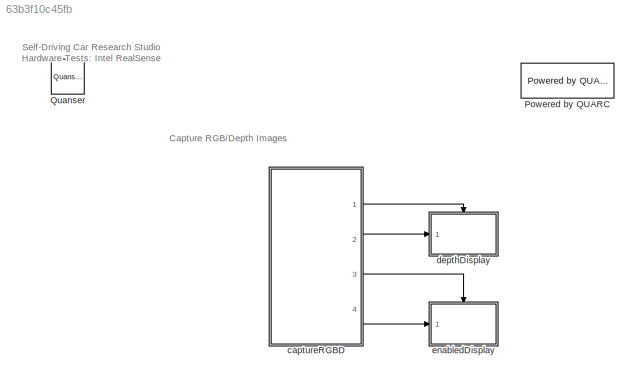
MODEL slx_63b3f10c45fb
KIND model
CONFIG AbsTol = auto
CONFIG EnableMultiTasking = on
CONFIG FixedStep = 1/30
CONFIG MaxStep = auto
CONFIG MinStep = auto
CONFIG RelTol = 1e-3
CONFIG SampleTimeConstraint = Unconstrained
CONFIG Solver = ode2
CONFIG SolverName = ode2
CONFIG StartTime = 0.0
CONFIG StopTime = inf
BLOCK [Reference] Powered by QUARC  REF=quarc_library/Logos/Powered by QUARC
  Ports = []
  SourceBlock = quarc_library/Logos/Powered by QUARC
  SourceProductName = QUARC Targets
  SourceType = Powered by QUARC
BLOCK [Reference] Quanser  REF=quarc_library/Logos/Quanser
  Ports = []
  SourceBlock = quarc_library/Logos/Quanser
  SourceProductName = QUARC Targets
  SourceType = Powered by Quanser
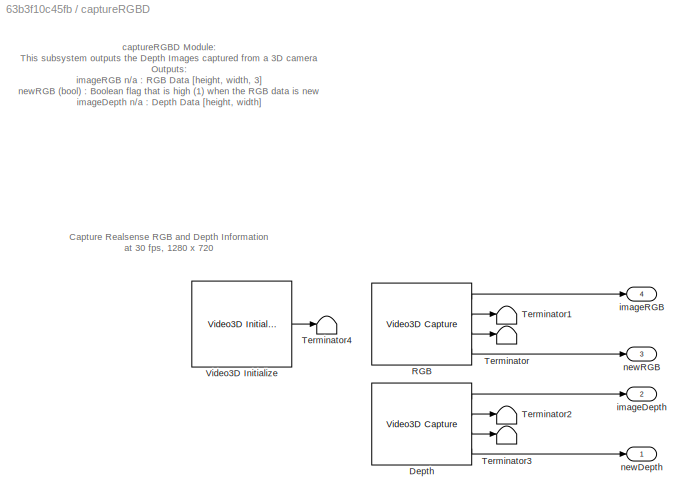
BLOCK [SubSystem] captureRGBD
  Ports = [0, 4]
  RequestExecContextInheritance = off
BLOCK [Reference] captureRGBD/Depth  REF=quarc_library/Multimedia/Video3D Capture
  Ports = [0, 4]
  SourceBlock = quarc_library/Multimedia/Video3D Capture
  SourceProductName = QUARC Targets
  SourceType = Video3D Capture
  UserDataPersistent = on
BLOCK [Reference] captureRGBD/RGB  REF=quarc_library/Multimedia/Video3D Capture
  Ports = [0, 4]
  SourceBlock = quarc_library/Multimedia/Video3D Capture
  SourceProductName = QUARC Targets
  SourceType = Video3D Capture
  UserDataPersistent = on
BLOCK [Terminator] captureRGBD/Terminator
BLOCK [Terminator] captureRGBD/Terminator1
BLOCK [Terminator] captureRGBD/Terminator2
BLOCK [Terminator] captureRGBD/Terminator3
BLOCK [Terminator] captureRGBD/Terminator4
BLOCK [Reference] captureRGBD/Video3D Initialize  REF=quarc_library/Multimedia/Video3D Initialize
  Ports = [0, 1]
  SourceBlock = quarc_library/Multimedia/Video3D Initialize
  SourceProductName = QUARC Targets
  SourceType = Video3D Initialize
BLOCK [Outport] captureRGBD/imageDepth
  IconDisplay = Port number
  Port = 2
BLOCK [Outport] captureRGBD/imageRGB
  IconDisplay = Port number
  Port = 4
BLOCK [Outport] captureRGBD/newDepth
  IconDisplay = Port number
BLOCK [Outport] captureRGBD/newRGB
  IconDisplay = Port number
  Port = 3
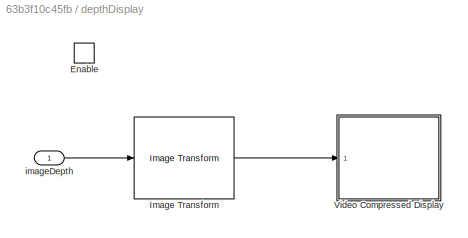
BLOCK [SubSystem] depthDisplay
  Ports = [1, 0, 1]
  RequestExecContextInheritance = off
BLOCK [EnablePort] depthDisplay/Enable
  Ports = []
  PropagateVarSize = During execution
BLOCK [Reference] depthDisplay/Image Transform  REF=quarc_library/Image Processing/Generic/Image Transform
  AttributesFormatString = (%<algorithm>)
  Ports = [1, 1]
  SourceBlock = quarc_library/Image Processing/Generic/Image Transform
  SourceProductName = QUARC Targets
  SourceType = Image Transform
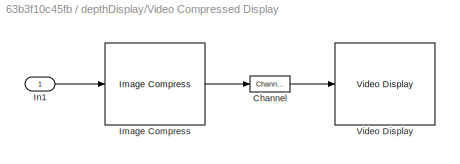
BLOCK [SubSystem] depthDisplay/Video Compressed Display
  CopyFcn = set_param(gcbh, 'UserData', gcb);\nset_param(gcbh, 'LinkStatus', 'none');
  LoadFcn = set_param(gcbh, 'UserData', gcb);
  NameChangeFcn = video_display_show([get_param(gcbh, 'UserData'), '/Video Display'], 'rename', [gcb, '/Video Display']);\nvideo_display_show([gcb, '/Video Display'], 'add', gcb);\nset_param(gcbh, 'UserData', gcb);
  OpenFcn = video_display_show([gcb, '/Video Display'], 'show', gcb);
  Ports = [1]
  PreDeleteFcn = video_display_show([gcb, '/Video Display'], 'delete');
  RequestExecContextInheritance = off
  StartFcn = video_display_show([gcb, '/Video Display'], 'add', gcb);
  UndoDeleteFcn = set_param(gcbh, 'UserData', gcb);
BLOCK [Reference] depthDisplay/Video Compressed Display/Channel  REF=quarc_library/Signal Routing/Channel
  Ports = [1, 1]
  SourceBlock = quarc_library/Signal Routing/Channel
  SourceProductName = QUARC Targets
  SourceType = Channel
BLOCK [Reference] depthDisplay/Video Compressed Display/Image Compress  REF=quarc_library/Image Processing/Generic/Image Compress
  AttributesFormatString = (%<algorithm>)
  Ports = [1, 1]
  SourceBlock = quarc_library/Image Processing/Generic/Image Compress
  SourceProductName = QUARC Targets
  SourceType = Image Compress
BLOCK [Inport] depthDisplay/Video Compressed Display/In1
  IconDisplay = Port number
BLOCK [Reference] depthDisplay/Video Compressed Display/Video Display  REF=quarc_library/Multimedia/Video Display
  Ports = [1]
  SourceBlock = quarc_library/Multimedia/Video Display
  SourceProductName = QUARC Targets
  SourceType = Video Display
  Tag = Intel_Realsense/depthDisplay/Video Compressed\nDisplay/Video Display
  UserDataPersistent = on
BLOCK [Inport] depthDisplay/imageDepth
  IconDisplay = Port number
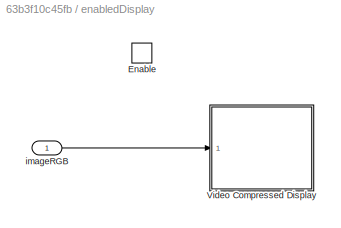
BLOCK [SubSystem] enabledDisplay
  Ports = [1, 0, 1]
  RequestExecContextInheritance = off
BLOCK [EnablePort] enabledDisplay/Enable
  Ports = []
  PropagateVarSize = During execution
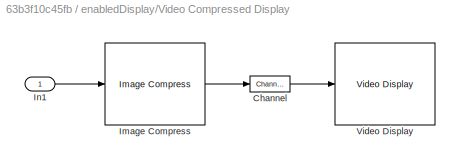
BLOCK [SubSystem] enabledDisplay/Video Compressed Display
  CopyFcn = set_param(gcbh, 'UserData', gcb);\nset_param(gcbh, 'LinkStatus', 'none');
  LoadFcn = set_param(gcbh, 'UserData', gcb);
  NameChangeFcn = video_display_show([get_param(gcbh, 'UserData'), '/Video Display'], 'rename', [gcb, '/Video Display']);\nvideo_display_show([gcb, '/Video Display'], 'add', gcb);\nset_param(gcbh, 'UserData', gcb);
  OpenFcn = video_display_show([gcb, '/Video Display'], 'show', gcb);
  Ports = [1]
  PreDeleteFcn = video_display_show([gcb, '/Video Display'], 'delete');
  RequestExecContextInheritance = off
  StartFcn = video_display_show([gcb, '/Video Display'], 'add', gcb);
  UndoDeleteFcn = set_param(gcbh, 'UserData', gcb);
BLOCK [Reference] enabledDisplay/Video Compressed Display/Channel  REF=quarc_library/Signal Routing/Channel
  Ports = [1, 1]
  SourceBlock = quarc_library/Signal Routing/Channel
  SourceProductName = QUARC Targets
  SourceType = Channel
BLOCK [Reference] enabledDisplay/Video Compressed Display/Image Compress  REF=quarc_library/Image Processing/Generic/Image Compress
  AttributesFormatString = (%<algorithm>)
  Ports = [1, 1]
  SourceBlock = quarc_library/Image Processing/Generic/Image Compress
  SourceProductName = QUARC Targets
  SourceType = Image Compress
BLOCK [Inport] enabledDisplay/Video Compressed Display/In1
  IconDisplay = Port number
BLOCK [Reference] enabledDisplay/Video Compressed Display/Video Display  REF=quarc_library/Multimedia/Video Display
  Ports = [1]
  SourceBlock = quarc_library/Multimedia/Video Display
  SourceProductName = QUARC Targets
  SourceType = Video Display
  Tag = Intel_Realsense/enabledDisplay/Video Compressed\nDisplay/Video Display
  UserDataPersistent = on
BLOCK [Inport] enabledDisplay/imageRGB
  IconDisplay = Port number
ANNOTATION (root): Self-Driving Car Research Studio Hardware Tests: Intel RealSense
ANNOTATION (root): Capture RGB/Depth Images
ANNOTATION captureRGBD: captureRGBD Module: This subsystem outputs the Depth Images captured from a 3D camera Outputs: imageRGB n/a : RGB Data [height, width, 3] newRGB (bool) : Boolean flag that is high (1) when the RGB data is new imageDepth n/a : Depth Data [height, width] newDepth (bool) : Boolean flag that is high (1) when the depth data is new Usage: Connect the new ports to the Enable/Trigger port of Enabled/Trigg...<+65ch>
ANNOTATION captureRGBD: Capture Realsense RGB and Depth Information at 30 fps, 1280 x 720
LINE captureRGBD/Depth:1 -> captureRGBD/imageDepth:1
LINE captureRGBD/Depth:2 -> captureRGBD/Terminator2:1
LINE captureRGBD/Depth:3 -> captureRGBD/Terminator3:1
LINE captureRGBD/Depth:4 -> captureRGBD/newDepth:1
LINE captureRGBD/RGB:1 -> captureRGBD/imageRGB:1
LINE captureRGBD/RGB:2 -> captureRGBD/Terminator1:1
LINE captureRGBD/RGB:3 -> captureRGBD/Terminator:1
LINE captureRGBD/RGB:4 -> captureRGBD/newRGB:1
LINE captureRGBD/Video3D Initialize:1 -> captureRGBD/Terminator4:1
LINE captureRGBD:1 -> depthDisplay:enable
LINE captureRGBD:2 -> depthDisplay:1
LINE captureRGBD:3 -> enabledDisplay:enable
LINE captureRGBD:4 -> enabledDisplay:1
LINE depthDisplay/Image Transform:1 -> depthDisplay/Video Compressed Display:1
LINE depthDisplay/imageDepth:1 -> depthDisplay/Image Transform:1
LINE enabledDisplay/imageRGB:1 -> enabledDisplay/Video Compressed Display:1
